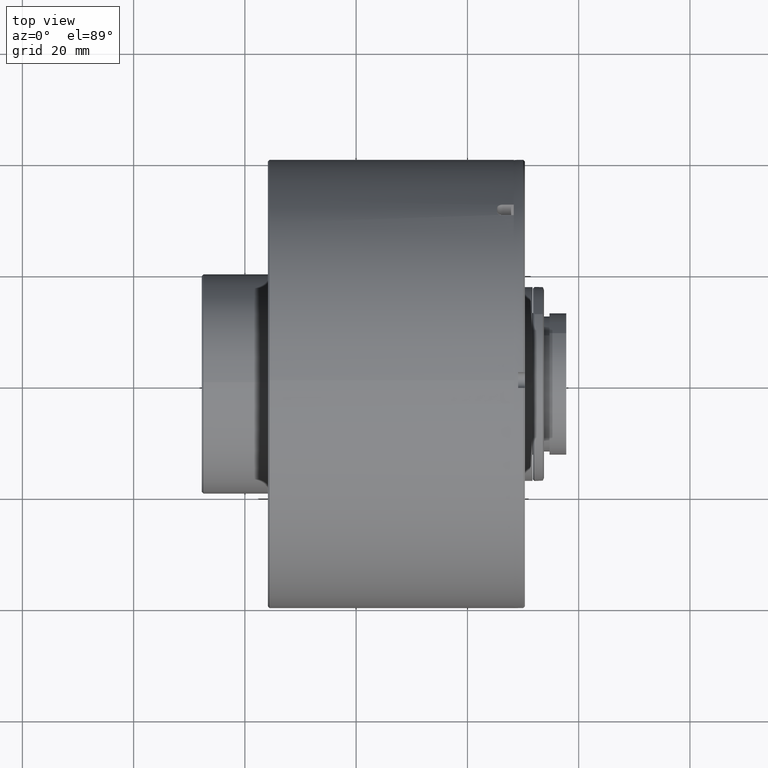
[diagram: clean part render]
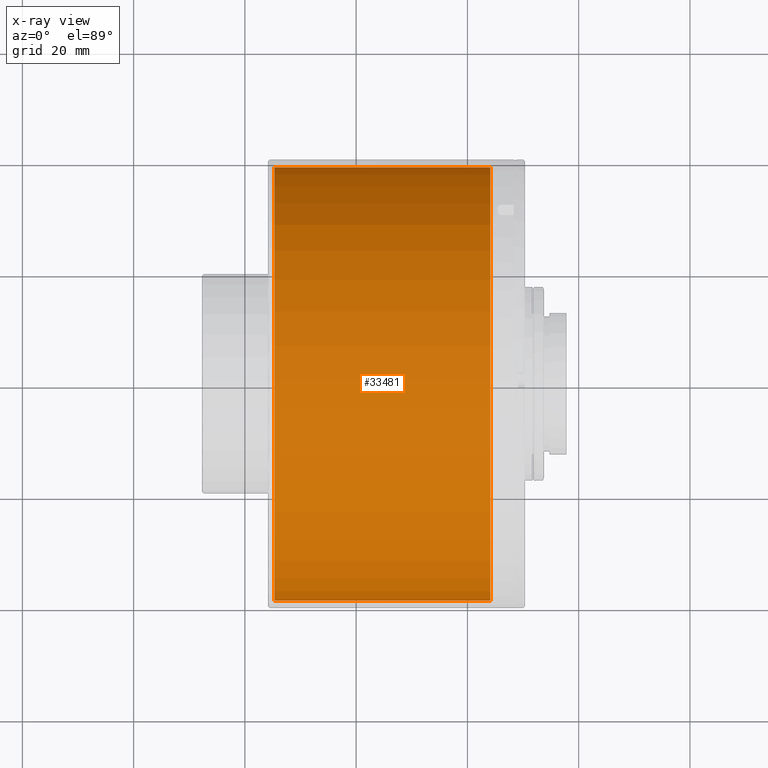
[diagram: x-ray — body ghosted, one internal face saturated and labeled with its STEP entity id]
A machine part, top view, then the same camera in x-ray: the body is ghosted and one INTERNAL B-rep face — a face not visible from any outside direction — is saturated and labeled: STEP entity #33481.
In plain terms, the highlighted cylindrical surface (bore or boss wall) has radius 39 mm, axis along (-1, -0, -0).
Its self-contained STEP definition (entity closure, byte-faithful):
#2262 = FACE_OUTER_BOUND ( 'NONE', #15784, .T. ) ;
#10268 = CYLINDRICAL_SURFACE ( 'NONE', #42858, 39.00000000000000711 ) ;
#14401 = DIRECTION ( 'NONE',  ( 0.000000000000000000, 0.000000000000000000, 1.000000000000000000 ) ) ;
#15696 = CARTESIAN_POINT ( 'NONE',  ( 224.1208642838983565, -1.103418725978676999E-13, -1.249004384131938183E-13 ) ) ;
#15784 = EDGE_LOOP ( 'NONE', ( #21104 ) ) ;
#17103 = CARTESIAN_POINT ( 'NONE',  ( 184.1208642838983565, -1.103418725978676999E-13, -1.249004384131938183E-13 ) ) ;
#17824 = DIRECTION ( 'NONE',  ( 0.000000000000000000, 0.000000000000000000, 1.000000000000000000 ) ) ;
#17825 = DIRECTION ( 'NONE',  ( -1.000000000000000000, -0.000000000000000000, -0.000000000000000000 ) ) ;
#17860 = CIRCLE ( 'NONE', #34926, 39.00000000000000711 ) ;
#20710 = EDGE_CURVE ( 'NONE', #30974, #30974, #17860, .T. ) ;
#21104 = ORIENTED_EDGE ( 'NONE', *, *, #45708, .T. ) ;
#21471 = CARTESIAN_POINT ( 'NONE',  ( 185.3208642838983451, -1.103418725978676999E-13, -1.249004384131938183E-13 ) ) ;
#22523 = DIRECTION ( 'NONE',  ( 1.000000000000000000, 0.000000000000000000, 0.000000000000000000 ) ) ;
#24305 = VERTEX_POINT ( 'NONE', #27229 ) ;
#26407 = ORIENTED_EDGE ( 'NONE', *, *, #20710, .F. ) ;
#27229 = CARTESIAN_POINT ( 'NONE',  ( 224.1208642838983565, -1.103418725978676999E-13, 38.99999999999987921 ) ) ;
#28942 = CIRCLE ( 'NONE', #45209, 39.00000000000000711 ) ;
#30974 = VERTEX_POINT ( 'NONE', #41923 ) ;
#33481 = ADVANCED_FACE ( 'NONE', ( #2262, #40435 ), #10268, .F. ) ;
#34926 = AXIS2_PLACEMENT_3D ( 'NONE', #21471, #43086, #17824 ) ;
#38665 = EDGE_LOOP ( 'NONE', ( #26407 ) ) ;
#40435 = FACE_OUTER_BOUND ( 'NONE', #38665, .T. ) ;
#40734 = DIRECTION ( 'NONE',  ( 0.000000000000000000, 0.000000000000000000, 1.000000000000000000 ) ) ;
#41923 = CARTESIAN_POINT ( 'NONE',  ( 185.3208642838983451, -1.103418725978676999E-13, 38.99999999999987921 ) ) ;
#42858 = AXIS2_PLACEMENT_3D ( 'NONE', #17103, #17825, #14401 ) ;
#43086 = DIRECTION ( 'NONE',  ( 1.000000000000000000, 0.000000000000000000, 0.000000000000000000 ) ) ;
#45209 = AXIS2_PLACEMENT_3D ( 'NONE', #15696, #22523, #40734 ) ;
#45708 = EDGE_CURVE ( 'NONE', #24305, #24305, #28942, .T. ) ;